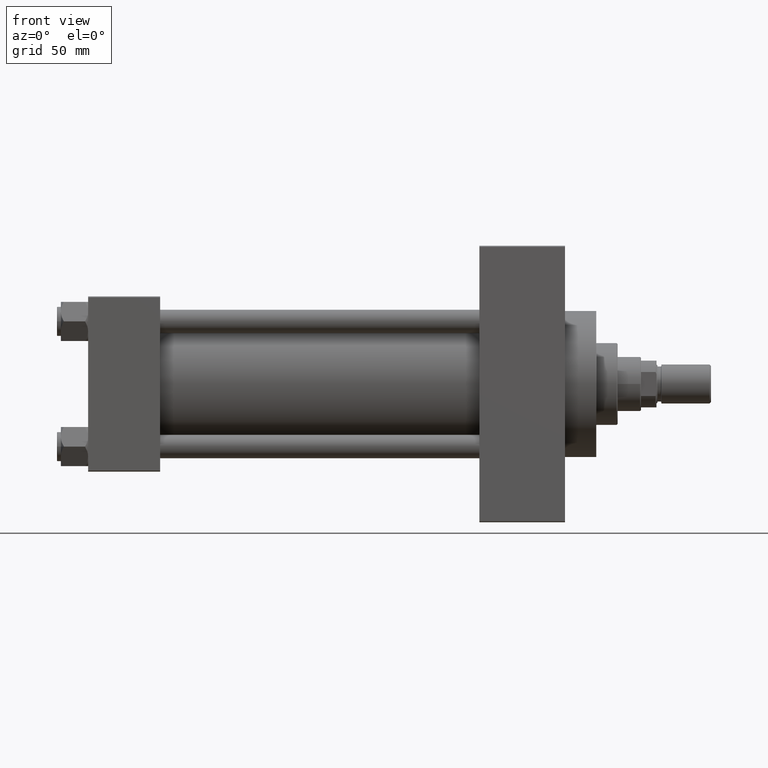
[diagram: clean part render]
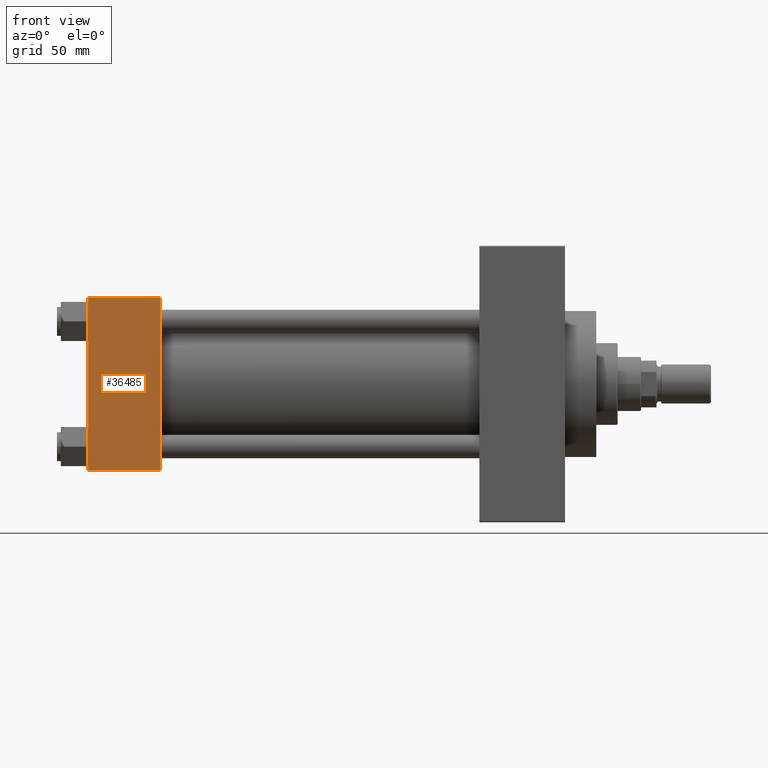
[diagram: same view with one face highlighted and labeled with its STEP entity id]
A machine part, front view. The second image highlights one B-rep face of the part: STEP entity #36485.
In plain terms, the highlighted planar face has unit normal (0, 1, 0).
Its self-contained STEP definition (entity closure, byte-faithful):
#882 = VECTOR ( 'NONE', #24150, 1000.000000000000000 ) ;
#2321 = EDGE_CURVE ( 'NONE', #31309, #4016, #13662, .T. ) ;
#3021 = CARTESIAN_POINT ( 'NONE',  ( 37.00000000000000000, -45.00000000000000000, -44.49999999999998579 ) ) ;
#4016 = VERTEX_POINT ( 'NONE', #26099 ) ;
#4993 = EDGE_CURVE ( 'NONE', #13445, #31309, #33657, .T. ) ;
#5477 = DIRECTION ( 'NONE',  ( 0.000000000000000000, -7.709882115452478166E-17, 1.000000000000000000 ) ) ;
#5717 = DIRECTION ( 'NONE',  ( -0.000000000000000000, 1.000000000000000000, 7.709882115452478166E-17 ) ) ;
#5891 = ORIENTED_EDGE ( 'NONE', *, *, #13404, .F. ) ;
#6006 = VECTOR ( 'NONE', #34131, 1000.000000000000000 ) ;
#6473 = CARTESIAN_POINT ( 'NONE',  ( 0.000000000000000000, -45.00000000000000711, 44.49999999999997158 ) ) ;
#9370 = LINE ( 'NONE', #12531, #882 ) ;
#9761 = LINE ( 'NONE', #28403, #28643 ) ;
#11294 = FACE_OUTER_BOUND ( 'NONE', #28086, .T. ) ;
#12531 = CARTESIAN_POINT ( 'NONE',  ( 37.00000000000000000, -45.00000000000000711, 45.00000000000000000 ) ) ;
#13382 = ORIENTED_EDGE ( 'NONE', *, *, #2321, .T. ) ;
#13404 = EDGE_CURVE ( 'NONE', #26506, #4016, #9370, .T. ) ;
#13445 = VERTEX_POINT ( 'NONE', #6473 ) ;
#13662 = LINE ( 'NONE', #3021, #37737 ) ;
#15251 = CARTESIAN_POINT ( 'NONE',  ( 0.000000000000000000, -45.00000000000000711, 45.00000000000000000 ) ) ;
#17788 = DIRECTION ( 'NONE',  ( 1.000000000000000000, 0.000000000000000000, 0.000000000000000000 ) ) ;
#20118 = ORIENTED_EDGE ( 'NONE', *, *, #4993, .T. ) ;
#20239 = CARTESIAN_POINT ( 'NONE',  ( 37.00000000000000000, -45.00000000000000711, 45.00000000000000000 ) ) ;
#21581 = CARTESIAN_POINT ( 'NONE',  ( 37.00000000000000000, -45.00000000000000711, 44.49999999999997158 ) ) ;
#24150 = DIRECTION ( 'NONE',  ( 0.000000000000000000, 7.709882115452476934E-17, -1.000000000000000000 ) ) ;
#26071 = PLANE ( 'NONE',  #31224 ) ;
#26099 = CARTESIAN_POINT ( 'NONE',  ( 37.00000000000000000, -45.00000000000000000, -44.49999999999995737 ) ) ;
#26506 = VERTEX_POINT ( 'NONE', #21581 ) ;
#28086 = EDGE_LOOP ( 'NONE', ( #20118, #13382, #5891, #45906 ) ) ;
#28403 = CARTESIAN_POINT ( 'NONE',  ( 37.00000000000000000, -45.00000000000000711, 44.49999999999997158 ) ) ;
#28643 = VECTOR ( 'NONE', #31566, 1000.000000000000000 ) ;
#29260 = EDGE_CURVE ( 'NONE', #26506, #13445, #9761, .T. ) ;
#31224 = AXIS2_PLACEMENT_3D ( 'NONE', #20239, #5717, #5477 ) ;
#31309 = VERTEX_POINT ( 'NONE', #44191 ) ;
#31566 = DIRECTION ( 'NONE',  ( -1.000000000000000000, 0.000000000000000000, 0.000000000000000000 ) ) ;
#33657 = LINE ( 'NONE', #15251, #6006 ) ;
#34131 = DIRECTION ( 'NONE',  ( 0.000000000000000000, 7.709882115452476934E-17, -1.000000000000000000 ) ) ;
#36485 = ADVANCED_FACE ( 'NONE', ( #11294 ), #26071, .F. ) ;
#37737 = VECTOR ( 'NONE', #17788, 1000.000000000000000 ) ;
#44191 = CARTESIAN_POINT ( 'NONE',  ( 0.000000000000000000, -45.00000000000000000, -44.49999999999995737 ) ) ;
#45906 = ORIENTED_EDGE ( 'NONE', *, *, #29260, .T. ) ;